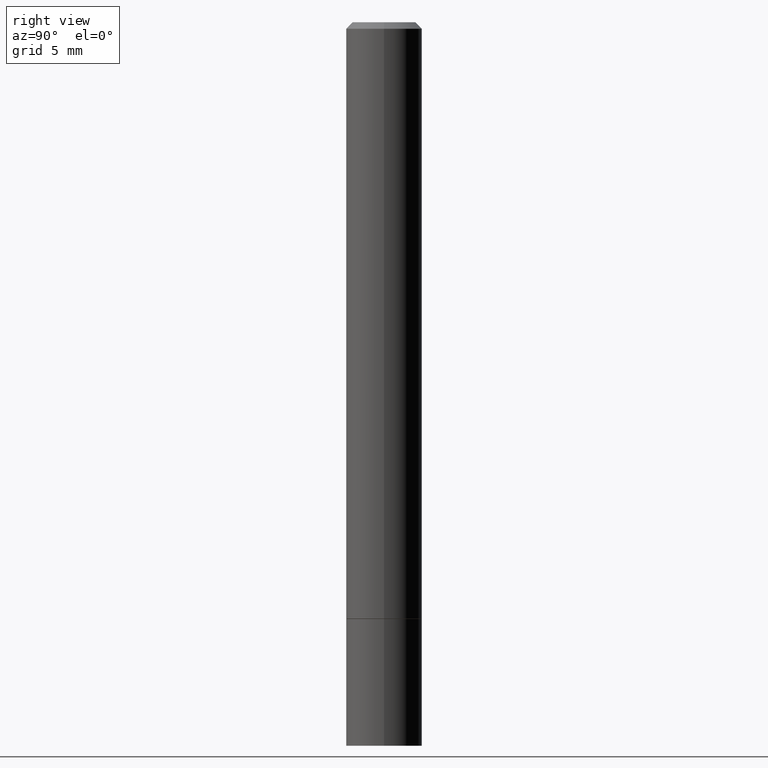
[diagram: clean part render]
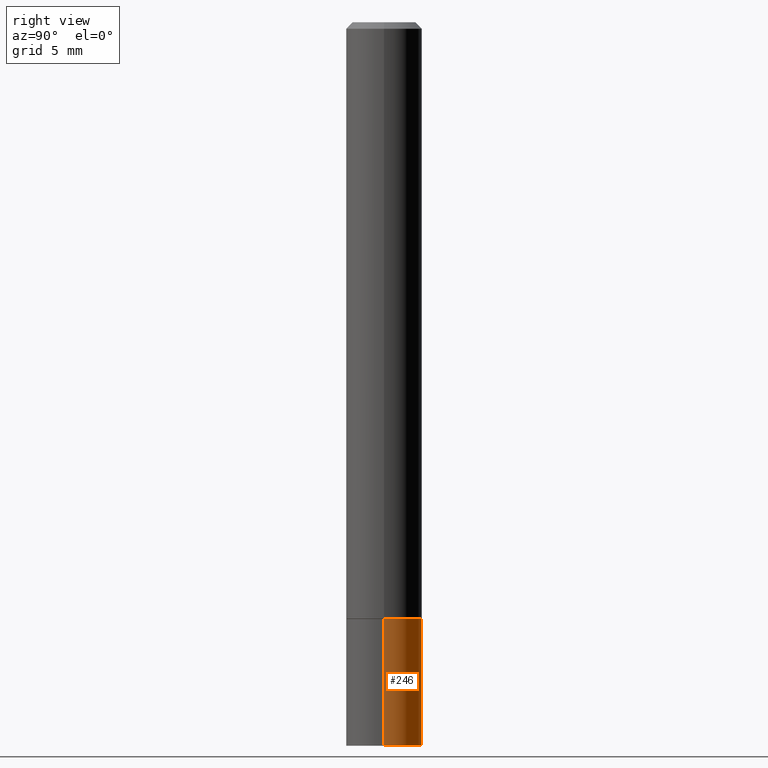
[diagram: same view with one face highlighted and labeled with its STEP entity id]
A machine part, right view. The second image highlights one B-rep face of the part: STEP entity #246.
In plain terms, the highlighted cylindrical surface (partial cylindrical patch) has radius 2.9997 mm, axis along (-0, 0, 1).
Its self-contained STEP definition (entity closure, byte-faithful):
#7 = CARTESIAN_POINT ( 'NONE',  ( 0.1180999999999999966, -8.246878922347480654E-16, 5.758764772215000440E-30 ) ) ;
#15 = CARTESIAN_POINT ( 'NONE',  ( 0.1180999999999999966, -7.285324961630104261E-15, -1.850400000000000045 ) ) ;
#27 = ORIENTED_EDGE ( 'NONE', *, *, #127, .T. ) ;
#37 = EDGE_CURVE ( 'NONE', #57, #223, #105, .T. ) ;
#45 = CARTESIAN_POINT ( 'NONE',  ( 5.487876547960064752E-29, -7.835233272497902340E-15, -2.244099999999999984 ) ) ;
#47 = CARTESIAN_POINT ( 'NONE',  ( 0.1180999999999999966, -8.659921164732650602E-15, -2.244099999999999984 ) ) ;
#57 = VERTEX_POINT ( 'NONE', #47 ) ;
#61 = AXIS2_PLACEMENT_3D ( 'NONE', #270, #229, #164 ) ;
#62 = DIRECTION ( 'NONE',  ( -2.445468806185136597E-29, 3.491481338843145583E-15, 1.000000000000000000 ) ) ;
#66 = LINE ( 'NONE', #94, #123 ) ;
#83 = VECTOR ( 'NONE', #259, 39.37007874015748143 ) ;
#84 = CIRCLE ( 'NONE', #313, 0.1180999999999999966 ) ;
#94 = CARTESIAN_POINT ( 'NONE',  ( -0.1180999999999999966, 8.391509709326782957E-16, -5.809262341591043784E-30 ) ) ;
#104 = DIRECTION ( 'NONE',  ( 1.000000000000000000, -6.982962677686265133E-15, 0.000000000000000000 ) ) ;
#105 = LINE ( 'NONE', #7, #83 ) ;
#120 = DIRECTION ( 'NONE',  ( 1.000000000000000000, -6.982962677686265133E-15, 0.000000000000000000 ) ) ;
#122 = VERTEX_POINT ( 'NONE', #248 ) ;
#123 = VECTOR ( 'NONE', #355, 39.37007874015748143 ) ;
#125 = FACE_OUTER_BOUND ( 'NONE', #155, .T. ) ;
#126 = CARTESIAN_POINT ( 'NONE',  ( 4.525095478964976833E-29, -6.460637069395356787E-15, -1.850400000000000045 ) ) ;
#127 = EDGE_CURVE ( 'NONE', #237, #122, #66, .T. ) ;
#146 = ORIENTED_EDGE ( 'NONE', *, *, #267, .T. ) ;
#155 = EDGE_LOOP ( 'NONE', ( #146, #27, #189, #298 ) ) ;
#158 = CYLINDRICAL_SURFACE ( 'NONE', #61, 0.1180999999999999966 ) ;
#161 = DIRECTION ( 'NONE',  ( -2.445468806185136597E-29, 3.491481338843145583E-15, 1.000000000000000000 ) ) ;
#164 = DIRECTION ( 'NONE',  ( 1.000000000000000000, -6.982962677686266711E-15, 4.876176775795936353E-29 ) ) ;
#171 = EDGE_CURVE ( 'NONE', #223, #122, #345, .T. ) ;
#187 = CARTESIAN_POINT ( 'NONE',  ( -0.1180999999999999966, -6.308784200013950972E-15, -2.244099999999999984 ) ) ;
#189 = ORIENTED_EDGE ( 'NONE', *, *, #171, .F. ) ;
#223 = VERTEX_POINT ( 'NONE', #15 ) ;
#229 = DIRECTION ( 'NONE',  ( -2.445468806185136597E-29, 3.491481338843145583E-15, 1.000000000000000000 ) ) ;
#237 = VERTEX_POINT ( 'NONE', #187 ) ;
#246 = ADVANCED_FACE ( 'NONE', ( #125 ), #158, .T. ) ;
#248 = CARTESIAN_POINT ( 'NONE',  ( -0.1180999999999999966, -6.308784200013950972E-15, -1.850400000000000045 ) ) ;
#259 = DIRECTION ( 'NONE',  ( -2.445468806185136877E-29, 3.491481338843145188E-15, 1.000000000000000000 ) ) ;
#267 = EDGE_CURVE ( 'NONE', #57, #237, #84, .T. ) ;
#270 = CARTESIAN_POINT ( 'NONE',  ( 0.000000000000000000, 0.000000000000000000, 0.000000000000000000 ) ) ;
#298 = ORIENTED_EDGE ( 'NONE', *, *, #37, .F. ) ;
#313 = AXIS2_PLACEMENT_3D ( 'NONE', #45, #161, #104 ) ;
#332 = AXIS2_PLACEMENT_3D ( 'NONE', #126, #62, #120 ) ;
#345 = CIRCLE ( 'NONE', #332, 0.1180999999999999966 ) ;
#355 = DIRECTION ( 'NONE',  ( -2.445468806185136877E-29, 3.491481338843145188E-15, 1.000000000000000000 ) ) ;